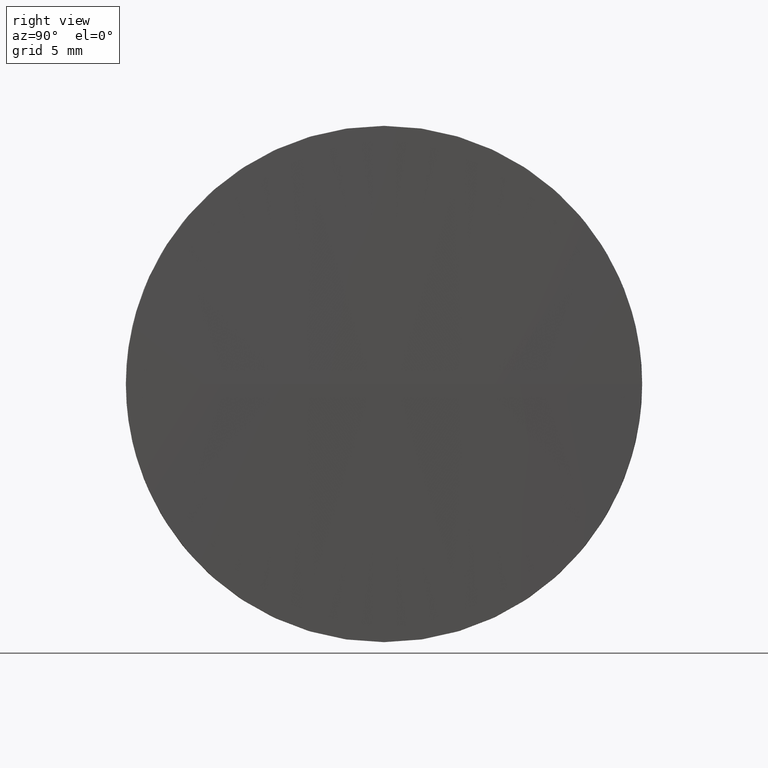
[diagram: clean part render]
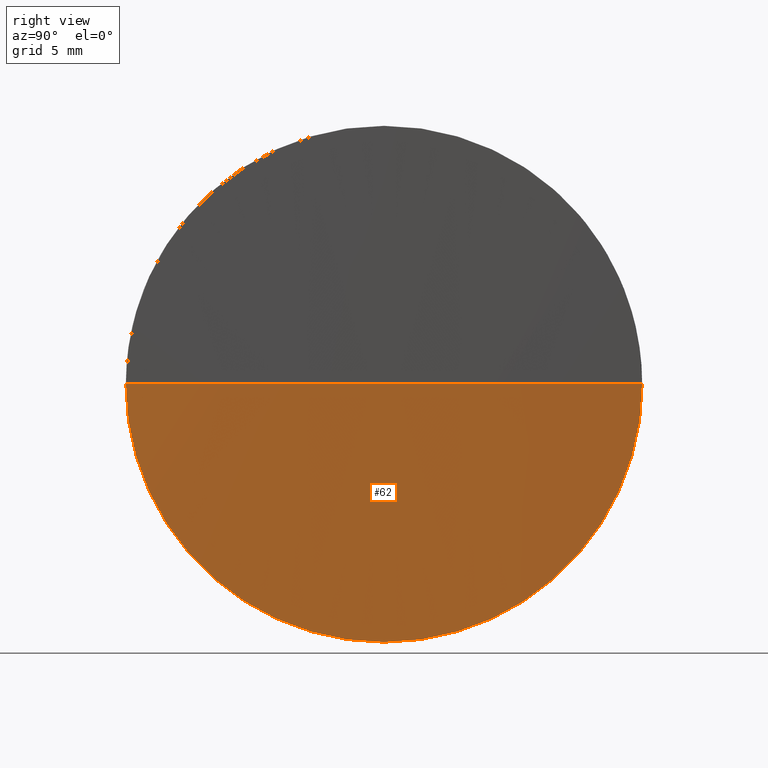
[diagram: same view with one face highlighted and labeled with its STEP entity id]
A machine part, right view. The second image highlights one B-rep face of the part: STEP entity #62.
In plain terms, the highlighted spherical surface has radius 806.5 mm.
Its self-contained STEP definition (entity closure, byte-faithful):
#14 = DIRECTION ( 'NONE',  ( 0.0000000000000000000, -1.224646799147353200E-016, 1.000000000000000000 ) ) ;
#15 = CARTESIAN_POINT ( 'NONE',  ( 505.6484435145779300, 171.1402879795670900, 0.0000000000000000000 ) ) ;
#16 = DIRECTION ( 'NONE',  ( 0.0000000000000000000, 0.0000000000000000000, 1.000000000000000000 ) ) ;
#30 = CARTESIAN_POINT ( 'NONE',  ( -300.8515564854678800, 171.1402879795671500, 0.0000000000000000000 ) ) ;
#35 = CARTESIAN_POINT ( 'NONE',  ( -300.8515564854678800, 171.1402879795671500, 0.0000000000000000000 ) ) ;
#42 = EDGE_CURVE ( 'NONE', #125, #150, #134, .T. ) ;
#45 = EDGE_LOOP ( 'NONE', ( #52, #123, #168, #81 ) ) ;
#46 = CARTESIAN_POINT ( 'NONE',  ( 505.5484435145779700, 158.4402879795674700, 0.0000000000000000000 ) ) ;
#47 = VERTEX_POINT ( 'NONE', #46 ) ;
#48 = EDGE_CURVE ( 'NONE', #50, #125, #99, .T. ) ;
#50 = VERTEX_POINT ( 'NONE', #15 ) ;
#52 = ORIENTED_EDGE ( 'NONE', *, *, #48, .F. ) ;
#53 = AXIS2_PLACEMENT_3D ( 'NONE', #153, #171, #116 ) ;
#56 = CARTESIAN_POINT ( 'NONE',  ( 505.5484435145779700, 171.1402879795670300, -12.70000000000001700 ) ) ;
#62 = ADVANCED_FACE ( 'NONE', ( #83 ), #106, .T. ) ;
#67 = AXIS2_PLACEMENT_3D ( 'NONE', #30, #14, #170 ) ;
#68 = DIRECTION ( 'NONE',  ( 0.0000000000000000000, 0.0000000000000000000, -1.000000000000000000 ) ) ;
#81 = ORIENTED_EDGE ( 'NONE', *, *, #42, .F. ) ;
#83 = FACE_OUTER_BOUND ( 'NONE', #45, .T. ) ;
#84 = CARTESIAN_POINT ( 'NONE',  ( 505.5484435145779700, 171.1402879795670300, 0.0000000000000000000 ) ) ;
#95 = AXIS2_PLACEMENT_3D ( 'NONE', #146, #159, #144 ) ;
#99 = CIRCLE ( 'NONE', #67, 806.5000000000458200 ) ;
#101 = CIRCLE ( 'NONE', #165, 806.5000000000457000 ) ;
#103 = EDGE_CURVE ( 'NONE', #50, #47, #101, .T. ) ;
#105 = EDGE_CURVE ( 'NONE', #150, #47, #135, .T. ) ;
#106 = SPHERICAL_SURFACE ( 'NONE', #53, 806.5000000000458200 ) ;
#116 = DIRECTION ( 'NONE',  ( 0.0000000000000000000, -1.000000000000000000, 0.0000000000000000000 ) ) ;
#123 = ORIENTED_EDGE ( 'NONE', *, *, #103, .T. ) ;
#125 = VERTEX_POINT ( 'NONE', #186 ) ;
#126 = AXIS2_PLACEMENT_3D ( 'NONE', #84, #156, #16 ) ;
#132 = DIRECTION ( 'NONE',  ( -1.000000000000000000, 0.0000000000000000000, 0.0000000000000000000 ) ) ;
#134 = CIRCLE ( 'NONE', #126, 12.70000000000001700 ) ;
#135 = CIRCLE ( 'NONE', #95, 12.70000000000001700 ) ;
#144 = DIRECTION ( 'NONE',  ( 0.0000000000000000000, 0.0000000000000000000, 1.000000000000000000 ) ) ;
#146 = CARTESIAN_POINT ( 'NONE',  ( 505.5484435145779700, 171.1402879795670300, 0.0000000000000000000 ) ) ;
#150 = VERTEX_POINT ( 'NONE', #56 ) ;
#153 = CARTESIAN_POINT ( 'NONE',  ( -300.8515564854678800, 171.1402879795671500, 0.0000000000000000000 ) ) ;
#156 = DIRECTION ( 'NONE',  ( -1.000000000000000000, -0.0000000000000000000, -0.0000000000000000000 ) ) ;
#159 = DIRECTION ( 'NONE',  ( -1.000000000000000000, -0.0000000000000000000, -0.0000000000000000000 ) ) ;
#165 = AXIS2_PLACEMENT_3D ( 'NONE', #35, #68, #132 ) ;
#168 = ORIENTED_EDGE ( 'NONE', *, *, #105, .F. ) ;
#170 = DIRECTION ( 'NONE',  ( 0.0000000000000000000, -1.000000000000000000, -1.224646799147353200E-016 ) ) ;
#171 = DIRECTION ( 'NONE',  ( 0.0000000000000000000, 0.0000000000000000000, 1.000000000000000000 ) ) ;
#186 = CARTESIAN_POINT ( 'NONE',  ( 505.5484435145779700, 183.8402879795667100, 1.555301434917087000E-015 ) ) ;